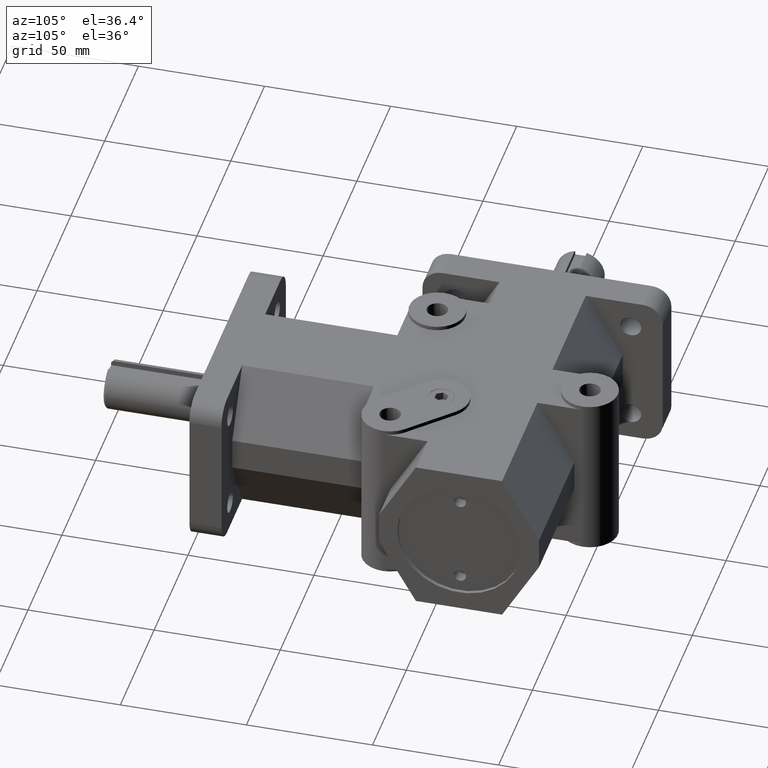
[diagram: clean part render]
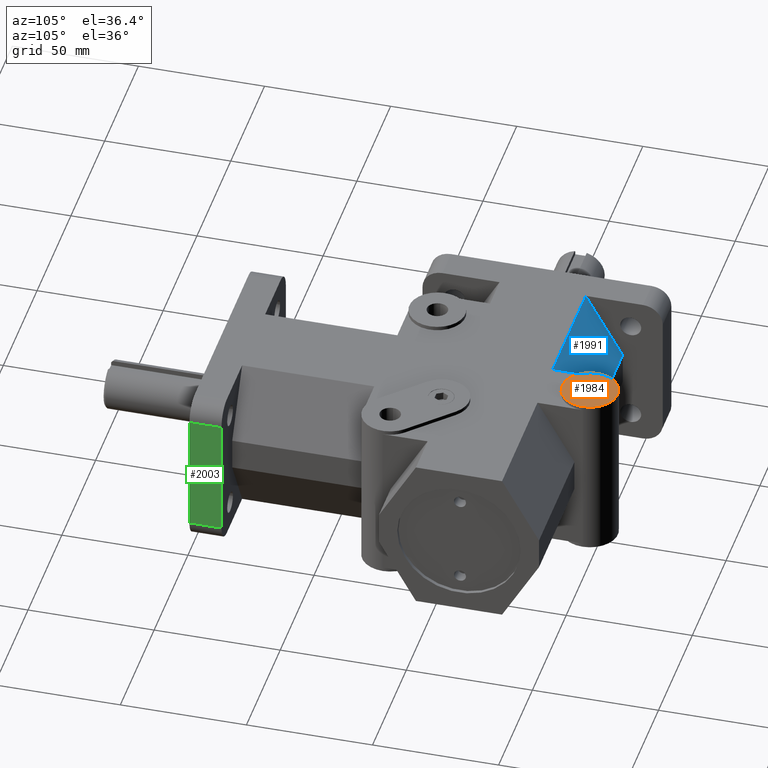
[diagram: same view with three faces highlighted in distinct colors, each labeled with its STEP entity id]
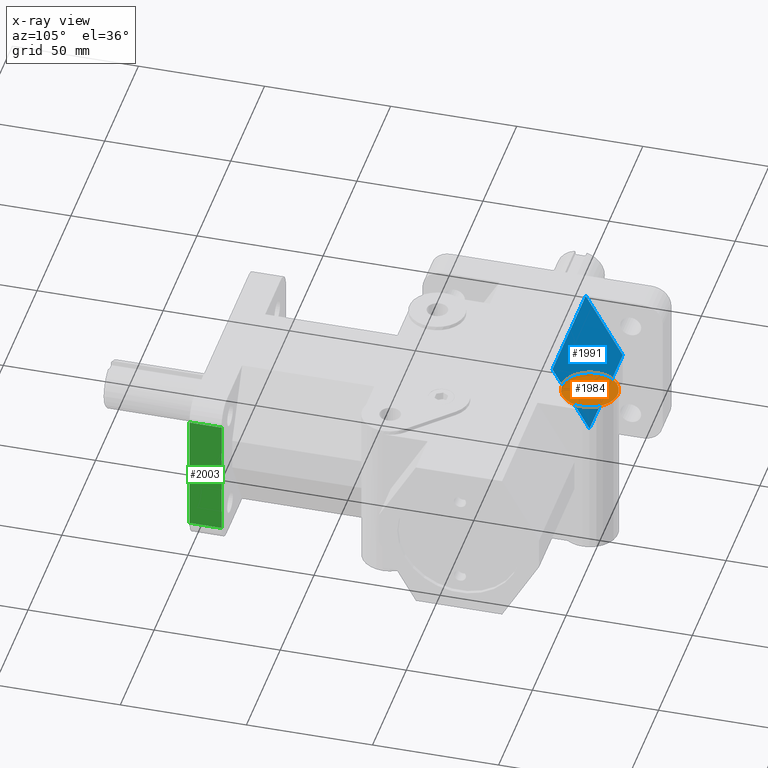
[diagram: x-ray of the same camera — body ghosted, the three highlighted faces saturated]
A machine part, auxiliary view with three faces highlighted in distinct colors.
The next image is the same camera in x-ray (body ghosted, the three faces saturated) — at least one of them is partly hidden behind the body in this view.
Their STEP definitions:

[orange] entity #1984 — the highlighted planar face has unit normal (0, 0, 1).
#463=FACE_BOUND('',#682,.T.);
#547=FACE_OUTER_BOUND('',#681,.T.);
#681=EDGE_LOOP('',(#1674));
#682=EDGE_LOOP('',(#1675));
#802=CIRCLE('',#2173,0.16375);
#806=CIRCLE('',#2186,0.4375);
#977=VERTEX_POINT('',#3276);
#983=VERTEX_POINT('',#3305);
#1226=EDGE_CURVE('',#977,#977,#802,.T.);
#1239=EDGE_CURVE('',#983,#983,#806,.T.);
#1674=ORIENTED_EDGE('',*,*,#1239,.F.);
#1675=ORIENTED_EDGE('',*,*,#1226,.T.);
#1881=PLANE('',#2185);
#1984=ADVANCED_FACE('',(#547,#463),#1881,.T.);
#2173=AXIS2_PLACEMENT_3D('',#3278,#2658,#2659);
#2185=AXIS2_PLACEMENT_3D('',#3304,#2691,#2692);
#2186=AXIS2_PLACEMENT_3D('',#3306,#2693,#2694);
#2658=DIRECTION('center_axis',(0.,0.,-1.));
#2659=DIRECTION('ref_axis',(1.,0.,0.));
#2691=DIRECTION('center_axis',(0.,0.,1.));
#2692=DIRECTION('ref_axis',(-1.,0.,0.));
#2693=DIRECTION('center_axis',(0.,0.,-1.));
#2694=DIRECTION('ref_axis',(1.,0.,0.));
#3276=CARTESIAN_POINT('',(-0.16375,5.75,1.3125));
#3278=CARTESIAN_POINT('Origin',(0.,5.75,1.3125));
#3304=CARTESIAN_POINT('Origin',(0.0397727272727273,5.75,1.3125));
#3305=CARTESIAN_POINT('',(-0.4375,5.75,1.3125));
#3306=CARTESIAN_POINT('Origin',(0.,5.75,1.3125));

[blue] entity #1991 — the highlighted planar face has unit normal (0, 0.866, 0.5).
#38=LINE('',#2889,#229);
#99=LINE('',#3063,#290);
#193=LINE('',#3336,#384);
#194=LINE('',#3337,#385);
#229=VECTOR('',#2296,1.);
#290=VECTOR('',#2449,1.);
#384=VECTOR('',#2723,1.);
#385=VECTOR('',#2724,1.);
#554=FACE_OUTER_BOUND('',#690,.T.);
#690=EDGE_LOOP('',(#1698,#1699,#1700,#1701));
#847=VERTEX_POINT('',#2886);
#848=VERTEX_POINT('',#2888);
#915=VERTEX_POINT('',#3062);
#992=VERTEX_POINT('',#3335);
#1034=EDGE_CURVE('',#848,#847,#38,.T.);
#1123=EDGE_CURVE('',#915,#848,#99,.F.);
#1253=EDGE_CURVE('',#847,#992,#193,.F.);
#1254=EDGE_CURVE('',#992,#915,#194,.T.);
#1698=ORIENTED_EDGE('',*,*,#1123,.T.);
#1699=ORIENTED_EDGE('',*,*,#1034,.T.);
#1700=ORIENTED_EDGE('',*,*,#1253,.T.);
#1701=ORIENTED_EDGE('',*,*,#1254,.T.);
#1888=PLANE('',#2194);
#1991=ADVANCED_FACE('',(#554),#1888,.T.);
#2194=AXIS2_PLACEMENT_3D('',#3334,#2721,#2722);
#2296=DIRECTION('',(1.,0.,0.));
#2449=DIRECTION('',(0.,0.499999825156179,-0.866025504730542));
#2721=DIRECTION('center_axis',(0.,0.866025504730542,0.499999825156179));
#2722=DIRECTION('ref_axis',(0.,0.499999825156179,-0.866025504730542));
#2723=DIRECTION('',(0.,-0.499999825156179,0.866025504730542));
#2724=DIRECTION('',(-1.,0.,0.));
#2886=CARTESIAN_POINT('',(-0.4375,5.04765,1.25));
#2888=CARTESIAN_POINT('',(-2.375,5.04765,1.25));
#2889=CARTESIAN_POINT('',(-0.21875,5.04765,1.25));
#3062=CARTESIAN_POINT('',(-2.375,5.625,0.25));
#3063=CARTESIAN_POINT('',(-2.375,5.53478907511826,0.406249978144526));
#3334=CARTESIAN_POINT('Origin',(-0.21875,5.336325,0.75));
#3335=CARTESIAN_POINT('',(-0.4375,5.625,0.25));
#3336=CARTESIAN_POINT('',(-0.4375,5.55041406419052,0.379186690585397));
#3337=CARTESIAN_POINT('',(-0.21875,5.625,0.25));

[green] entity #2003 — the highlighted planar face has unit normal (1, 0, 0).
#85=LINE('',#2995,#276);
#86=LINE('',#3002,#277);
#94=LINE('',#3041,#285);
#204=LINE('',#3359,#395);
#276=VECTOR('',#2373,1.);
#277=VECTOR('',#2382,1.);
#285=VECTOR('',#2428,1.);
#395=VECTOR('',#2758,1.);
#566=FACE_OUTER_BOUND('',#709,.T.);
#709=EDGE_LOOP('',(#1773,#1774,#1775,#1776));
#891=VERTEX_POINT('',#2992);
#892=VERTEX_POINT('',#2994);
#893=VERTEX_POINT('',#2998);
#894=VERTEX_POINT('',#3000);
#1088=EDGE_CURVE('',#891,#892,#85,.T.);
#1092=EDGE_CURVE('',#894,#893,#86,.T.);
#1112=EDGE_CURVE('',#891,#893,#94,.T.);
#1264=EDGE_CURVE('',#892,#894,#204,.T.);
#1773=ORIENTED_EDGE('',*,*,#1088,.F.);
#1774=ORIENTED_EDGE('',*,*,#1112,.T.);
#1775=ORIENTED_EDGE('',*,*,#1092,.F.);
#1776=ORIENTED_EDGE('',*,*,#1264,.F.);
#1899=PLANE('',#2206);
#2003=ADVANCED_FACE('',(#566),#1899,.T.);
#2206=AXIS2_PLACEMENT_3D('',#3358,#2756,#2757);
#2373=DIRECTION('',(0.,1.,0.));
#2382=DIRECTION('',(0.,-1.,0.));
#2428=DIRECTION('',(0.,0.,-1.));
#2756=DIRECTION('center_axis',(1.,0.,0.));
#2757=DIRECTION('ref_axis',(0.,-1.,0.));
#2758=DIRECTION('',(0.,0.,-1.));
#2992=CARTESIAN_POINT('',(1.875,0.,0.94));
#2994=CARTESIAN_POINT('',(1.875,0.5,0.94));
#2995=CARTESIAN_POINT('',(1.875,1.62991940443693,0.94));
#2998=CARTESIAN_POINT('',(1.875,0.,-0.94));
#3000=CARTESIAN_POINT('',(1.875,0.5,-0.94));
#3002=CARTESIAN_POINT('',(1.875,1.62991940443693,-0.94));
#3041=CARTESIAN_POINT('',(1.875,0.,0.));
#3358=CARTESIAN_POINT('Origin',(1.875,0.,0.));
#3359=CARTESIAN_POINT('',(1.875,0.5,0.));